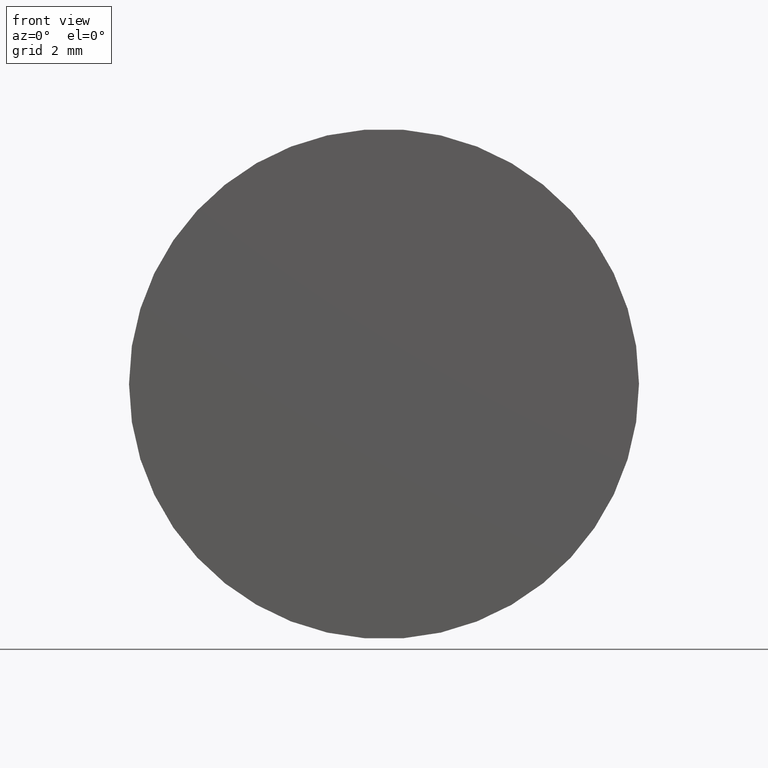
[diagram: clean part render]
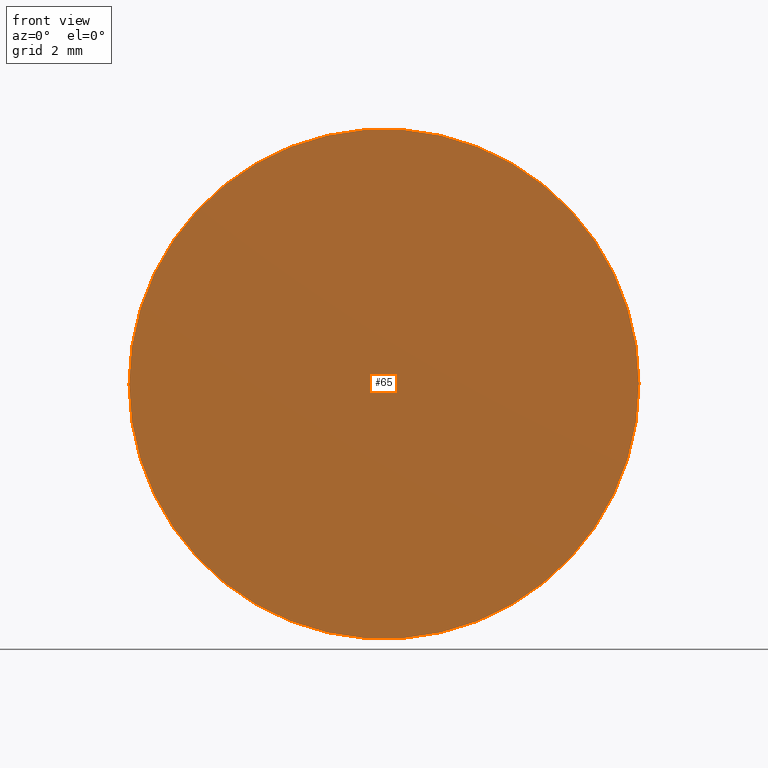
[diagram: same view with one face highlighted and labeled with its STEP entity id]
A machine part, front view. The second image highlights one B-rep face of the part: STEP entity #65.
In plain terms, the highlighted planar face has unit normal (-0, -1, 0).
Its self-contained STEP definition (entity closure, byte-faithful):
#9 = CIRCLE ( 'NONE', #120, 6.000000000000000000 ) ;
#10 = EDGE_CURVE ( 'NONE', #53, #38, #113, .T. ) ;
#20 = AXIS2_PLACEMENT_3D ( 'NONE', #179, #25, #152 ) ;
#22 = ORIENTED_EDGE ( 'NONE', *, *, #10, .F. ) ;
#25 = DIRECTION ( 'NONE',  ( -5.965473719752887796E-17, -1.000000000000000000, 0.000000000000000000 ) ) ;
#38 = VERTEX_POINT ( 'NONE', #58 ) ;
#39 = ORIENTED_EDGE ( 'NONE', *, *, #180, .F. ) ;
#53 = VERTEX_POINT ( 'NONE', #70 ) ;
#57 = CARTESIAN_POINT ( 'NONE',  ( -7.222237291452134449E-32, -1.301042606982605321E-15, 0.000000000000000000 ) ) ;
#58 = CARTESIAN_POINT ( 'NONE',  ( -6.000000000000000000, -9.431141837974319298E-16, 0.000000000000000000 ) ) ;
#65 = ADVANCED_FACE ( 'NONE', ( #188 ), #116, .T. ) ;
#68 = AXIS2_PLACEMENT_3D ( 'NONE', #57, #96, #162 ) ;
#70 = CARTESIAN_POINT ( 'NONE',  ( 6.000000000000000000, -1.658971030167778712E-15, 7.347880794884119736E-16 ) ) ;
#93 = DIRECTION ( 'NONE',  ( 5.965473719752887796E-17, 1.000000000000000000, -0.000000000000000000 ) ) ;
#96 = DIRECTION ( 'NONE',  ( 5.965473719752887796E-17, 1.000000000000000000, -0.000000000000000000 ) ) ;
#113 = CIRCLE ( 'NONE', #68, 6.000000000000000000 ) ;
#116 = PLANE ( 'NONE',  #20 ) ;
#120 = AXIS2_PLACEMENT_3D ( 'NONE', #122, #93, #155 ) ;
#122 = CARTESIAN_POINT ( 'NONE',  ( -7.222237291452134449E-32, -1.301042606982605321E-15, 0.000000000000000000 ) ) ;
#150 = EDGE_LOOP ( 'NONE', ( #39, #22 ) ) ;
#152 = DIRECTION ( 'NONE',  ( 1.000000000000000000, -5.965473719752887796E-17, 0.000000000000000000 ) ) ;
#155 = DIRECTION ( 'NONE',  ( -1.000000000000000000, 5.965473719752889028E-17, 0.000000000000000000 ) ) ;
#162 = DIRECTION ( 'NONE',  ( -1.000000000000000000, 5.965473719752889028E-17, 0.000000000000000000 ) ) ;
#179 = CARTESIAN_POINT ( 'NONE',  ( -3.259285789919778530E-32, -5.463582513367925344E-16, 0.000000000000000000 ) ) ;
#180 = EDGE_CURVE ( 'NONE', #38, #53, #9, .T. ) ;
#188 = FACE_OUTER_BOUND ( 'NONE', #150, .T. ) ;